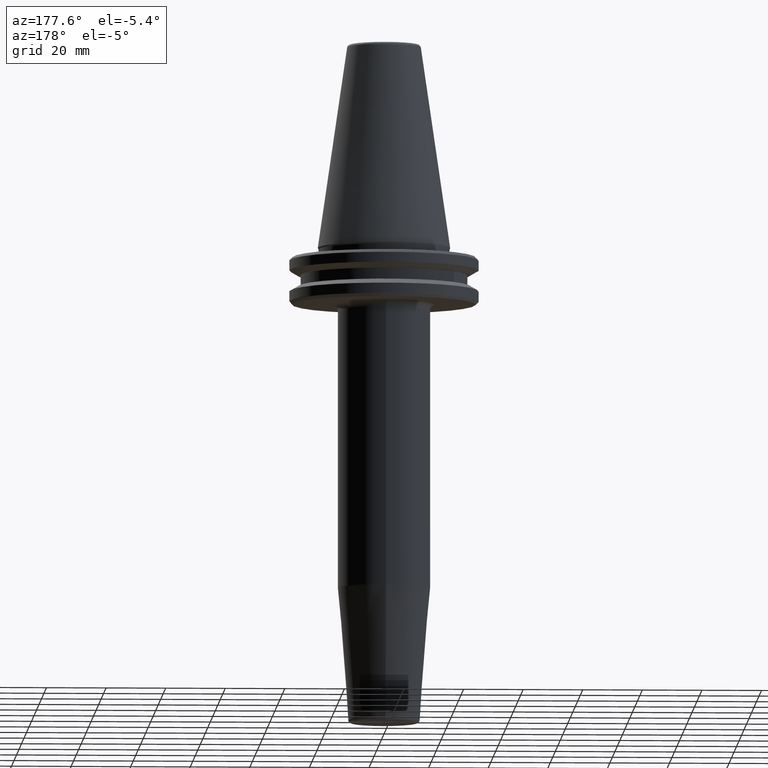
[diagram: clean part render]
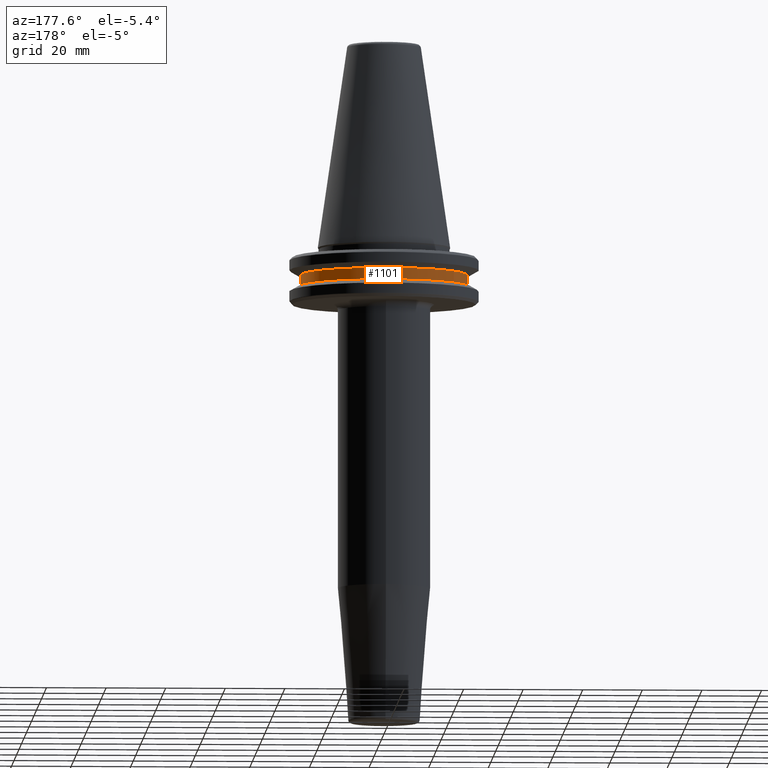
[diagram: same view with one face highlighted and labeled with its STEP entity id]
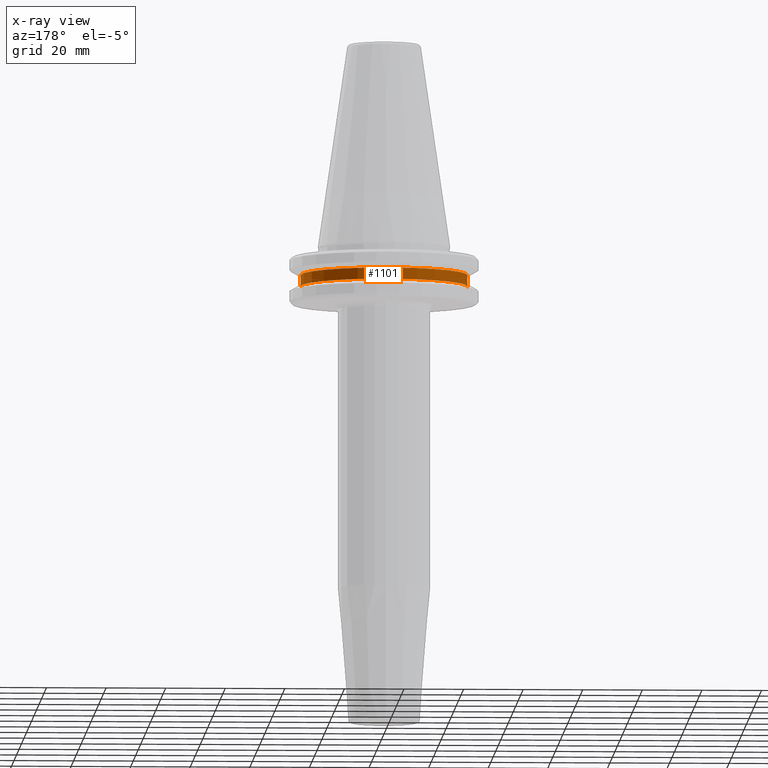
[diagram: x-ray of the same camera — body ghosted, the highlighted face saturated]
A machine part, auxiliary view. The second image highlights one B-rep face of the part: STEP entity #1101.
The next image is the same camera in x-ray: the body ghosted, the highlighted face saturated — about 0% of this face is hidden behind the body in this view.
In plain terms, the highlighted cylindrical surface (partial cylindrical patch) has radius 28 mm, axis along (-0, -0, 1).
Its self-contained STEP definition (entity closure, byte-faithful):
#92 = AXIS2_PLACEMENT_3D ( 'NONE', #1139, #580, #1246 ) ;
#131 = LINE ( 'NONE', #361, #637 ) ;
#172 = EDGE_LOOP ( 'NONE', ( #873, #1192, #182, #1042 ) ) ;
#180 = CARTESIAN_POINT ( 'NONE',  ( 28.00000000000000000, 0.0000000000000000000, -13.00000000000001100 ) ) ;
#182 = ORIENTED_EDGE ( 'NONE', *, *, #667, .F. ) ;
#206 = VECTOR ( 'NONE', #1214, 1000.000000000000000 ) ;
#294 = CARTESIAN_POINT ( 'NONE',  ( 0.0000000000000000000, 0.0000000000000000000, -9.199999999999999300 ) ) ;
#303 = DIRECTION ( 'NONE',  ( -0.0000000000000000000, -0.0000000000000000000, 1.000000000000000000 ) ) ;
#361 = CARTESIAN_POINT ( 'NONE',  ( 28.00000000000000000, 0.0000000000000000000, 113.5216080541959500 ) ) ;
#389 = CARTESIAN_POINT ( 'NONE',  ( 0.0000000000000000000, 0.0000000000000000000, 113.5216080541959500 ) ) ;
#399 = DIRECTION ( 'NONE',  ( 1.000000000000000000, 0.0000000000000000000, 0.0000000000000000000 ) ) ;
#403 = VERTEX_POINT ( 'NONE', #529 ) ;
#490 = LINE ( 'NONE', #1112, #206 ) ;
#497 = EDGE_CURVE ( 'NONE', #403, #1093, #490, .T. ) ;
#529 = CARTESIAN_POINT ( 'NONE',  ( -28.00000000000000000, 3.429011037612589300E-015, -13.00000000000001100 ) ) ;
#542 = AXIS2_PLACEMENT_3D ( 'NONE', #294, #303, #399 ) ;
#580 = DIRECTION ( 'NONE',  ( -0.0000000000000000000, -0.0000000000000000000, 1.000000000000000000 ) ) ;
#630 = EDGE_CURVE ( 'NONE', #1053, #1157, #131, .T. ) ;
#637 = VECTOR ( 'NONE', #741, 1000.000000000000000 ) ;
#641 = CIRCLE ( 'NONE', #92, 28.00000000000000000 ) ;
#667 = EDGE_CURVE ( 'NONE', #1157, #1093, #795, .T. ) ;
#670 = DIRECTION ( 'NONE',  ( 1.000000000000000000, 0.0000000000000000000, 0.0000000000000000000 ) ) ;
#741 = DIRECTION ( 'NONE',  ( -0.0000000000000000000, -0.0000000000000000000, 1.000000000000000000 ) ) ;
#747 = FACE_OUTER_BOUND ( 'NONE', #172, .T. ) ;
#763 = CARTESIAN_POINT ( 'NONE',  ( -28.00000000000000000, 3.429011037612589300E-015, -9.199999999999999300 ) ) ;
#784 = CARTESIAN_POINT ( 'NONE',  ( 28.00000000000000000, 0.0000000000000000000, -9.199999999999999300 ) ) ;
#795 = CIRCLE ( 'NONE', #542, 28.00000000000000000 ) ;
#854 = DIRECTION ( 'NONE',  ( -0.0000000000000000000, -0.0000000000000000000, 1.000000000000000000 ) ) ;
#873 = ORIENTED_EDGE ( 'NONE', *, *, #922, .T. ) ;
#922 = EDGE_CURVE ( 'NONE', #1053, #403, #641, .T. ) ;
#1042 = ORIENTED_EDGE ( 'NONE', *, *, #630, .F. ) ;
#1053 = VERTEX_POINT ( 'NONE', #180 ) ;
#1093 = VERTEX_POINT ( 'NONE', #763 ) ;
#1101 = ADVANCED_FACE ( 'NONE', ( #747 ), #1218, .T. ) ;
#1112 = CARTESIAN_POINT ( 'NONE',  ( -28.00000000000000000, 3.429011037612589300E-015, 113.5216080541959500 ) ) ;
#1139 = CARTESIAN_POINT ( 'NONE',  ( 0.0000000000000000000, 0.0000000000000000000, -13.00000000000001100 ) ) ;
#1144 = AXIS2_PLACEMENT_3D ( 'NONE', #389, #854, #670 ) ;
#1157 = VERTEX_POINT ( 'NONE', #784 ) ;
#1192 = ORIENTED_EDGE ( 'NONE', *, *, #497, .T. ) ;
#1214 = DIRECTION ( 'NONE',  ( -0.0000000000000000000, -0.0000000000000000000, 1.000000000000000000 ) ) ;
#1218 = CYLINDRICAL_SURFACE ( 'NONE', #1144, 28.00000000000000000 ) ;
#1246 = DIRECTION ( 'NONE',  ( 1.000000000000000000, 0.0000000000000000000, 0.0000000000000000000 ) ) ;